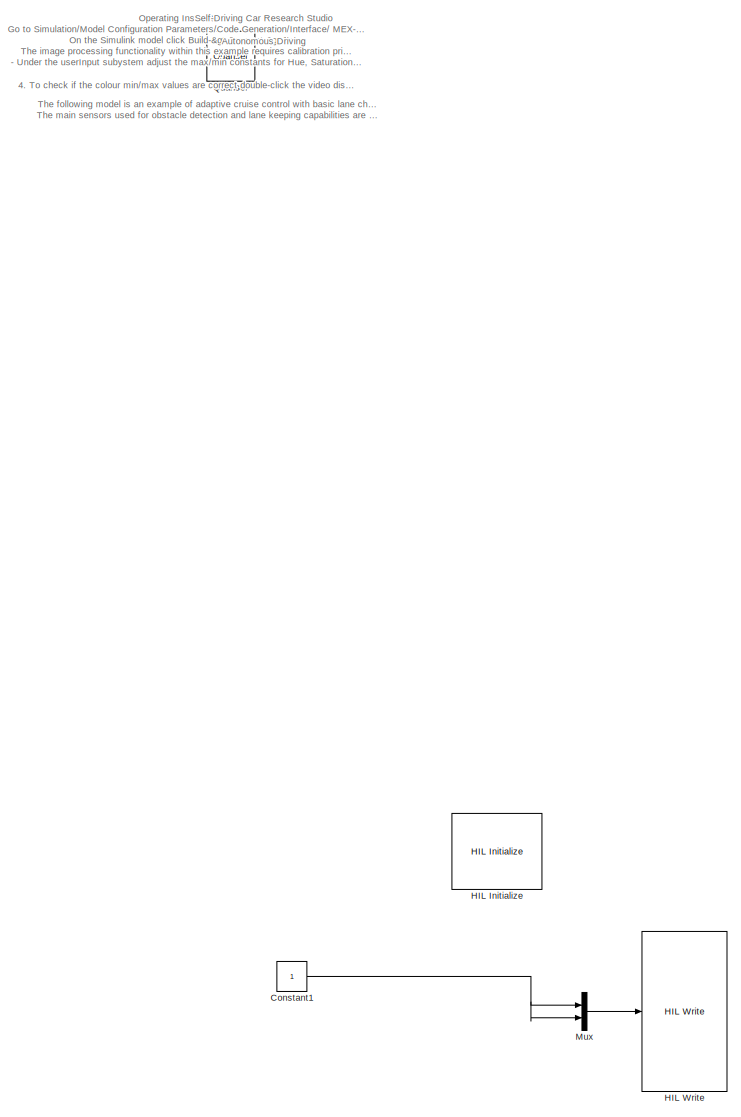
[diagram: root canvas - part 1/2, left side, full height]
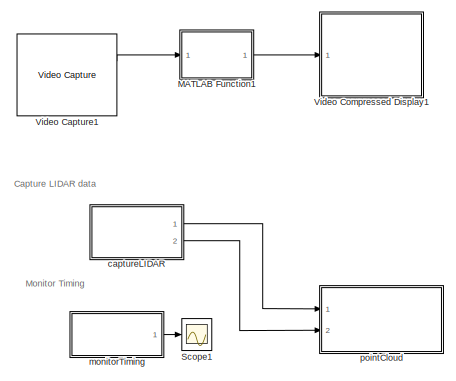
[diagram: root canvas - part 2/2, middle right region]
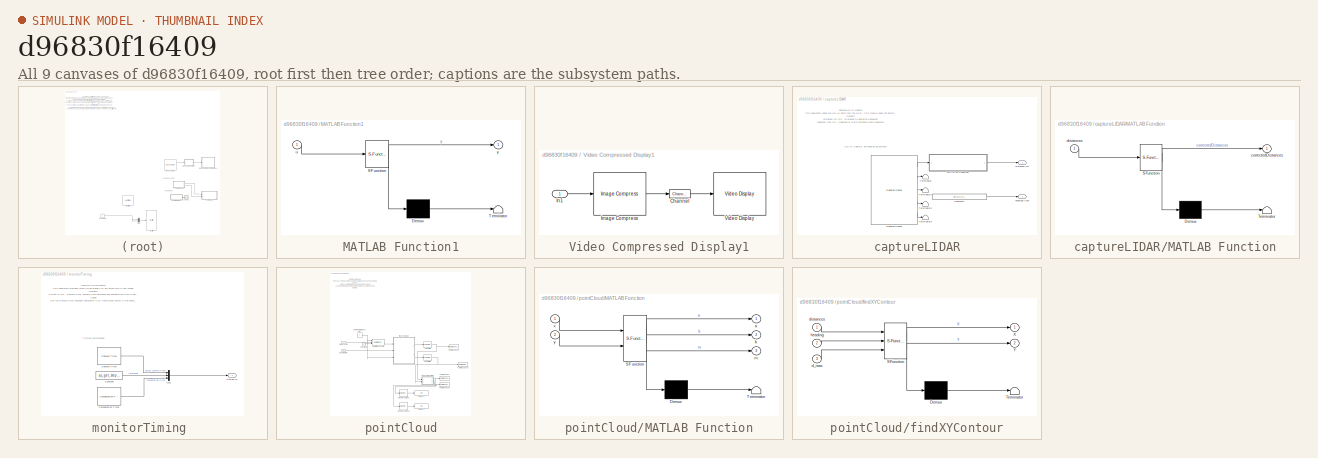
[diagram: thumbnail index - all 9 canvases of the model, root first then tree order]
MODEL slx_d96830f16409
KIND model
CONFIG AbsTol = auto
CONFIG EnableMultiTasking = on
CONFIG FixedStep = 1/120
CONFIG MaxStep = auto
CONFIG MinStep = auto
CONFIG RelTol = 1e-3
CONFIG SampleTimeConstraint = Unconstrained
CONFIG Solver = ode2
CONFIG SolverName = ode2
CONFIG StartTime = 0.0
CONFIG StopTime = inf
WORKSPACE source: MAT-file member
WORKSPACE MCOS: class17 (value not decoded)
BLOCK [Constant] Constant1
BLOCK [Reference] HIL Initialize  REF=quarc_library/Data Acquisition/Generic/Configuration/HIL Initialize
  AttributesFormatString = %<object_name> (%<board_type>-%<board_number>)
  Ports = []
  SourceBlock = quarc_library/Data Acquisition/Generic/Configuration/HIL Initialize
  SourceProductName = QUARC Targets
  SourceType = HIL Initialize
  UserDataPersistent = on
BLOCK [Reference] HIL Write  REF=quarc_library/Data Acquisition/Generic/Immediate I//O/HIL Write
  AttributesFormatString = (%<object_name>)
  Ports = [1]
  SourceBlock = quarc_library/Data Acquisition/Generic/Immediate I//O/HIL Write
  SourceProductName = QUARC Targets
  SourceType = HIL Write
  UserDataPersistent = on
BLOCK [SubSystem] MATLAB Function1
  ErrorFcn = Stateflow.Translate.translate
  PermitHierarchicalResolution = ExplicitOnly
  Ports = [1, 1]
  RequestExecContextInheritance = off
  SFBlockType = MATLAB Function
  TreatAsAtomicUnit = on
BLOCK [Demux] MATLAB Function1/ Demux 
  Outputs = 1
  Ports = [1, 1]
BLOCK [S-Function] MATLAB Function1/ SFunction 
  EnableBusSupport = on
  FunctionName = sf_sfun
  PortCounts = [1 2]
  Ports = [1, 2]
  SFcnIsStateOwnerBlock = off
  SFunctionDeploymentMode = off
  Tag = Stateflow S-Function calibration 3
BLOCK [Terminator] MATLAB Function1/ Terminator 
BLOCK [Inport] MATLAB Function1/u
  IconDisplay = Port number
BLOCK [Outport] MATLAB Function1/y
  IconDisplay = Port number
BLOCK [Mux] Mux
  DisplayOption = bar
  Inputs = 2
  Ports = [2, 1]
BLOCK [Reference] Quanser  REF=quarc_library/Logos/Quanser
  Ports = []
  SourceBlock = quarc_library/Logos/Quanser
  SourceProductName = QUARC Targets
  SourceType = Powered by Quanser
BLOCK [Scope] Scope1
  Floating = off
  NumInputPorts = 1
  Ports = [1]
  ScopeSpecificationString = Simulink.scopes.TimeScopeBlockCfg('CurrentConfiguration', extmgr.ConfigurationSet(extmgr.Configuration('Core','General UI',true),extmgr.Configuration('Core','Source UI',true),extmgr.Configuration('Sources','WiredSimulink',true),extmgr.Configuration('Visuals','Time Domain',true,'SerializedDisplays',{struct('MinYLimReal','-0.00448','MaxYLimReal','0.04029','YLabelReal','','MinYLimMag','0.00000','MaxY...<+1403ch>
BLOCK [Reference] Video Capture1  REF=quarc_library/Multimedia/Video Capture
  Ports = [0, 2]
  SourceBlock = quarc_library/Multimedia/Video Capture
  SourceProductName = QUARC Targets
  SourceType = Video Capture
BLOCK [SubSystem] Video Compressed Display1
  CopyFcn = set_param(gcbh, 'UserData', gcb);\nset_param(gcbh, 'LinkStatus', 'none');
  LoadFcn = set_param(gcbh, 'UserData', gcb);
  NameChangeFcn = video_display_show([get_param(gcbh, 'UserData'), '/Video Display'], 'rename', [gcb, '/Video Display']);\nvideo_display_show([gcb, '/Video Display'], 'add', gcb);\nset_param(gcbh, 'UserData', gcb);
  OpenFcn = video_display_show([gcb, '/Video Display'], 'show', gcb);
  Ports = [1]
  PreDeleteFcn = video_display_show([gcb, '/Video Display'], 'delete');
  RequestExecContextInheritance = off
  StartFcn = video_display_show([gcb, '/Video Display'], 'add', gcb);
  UndoDeleteFcn = set_param(gcbh, 'UserData', gcb);
BLOCK [Reference] Video Compressed Display1/Channel  REF=quarc_library/Signal Routing/Channel
  Ports = [1, 1]
  SourceBlock = quarc_library/Signal Routing/Channel
  SourceProductName = QUARC Targets
  SourceType = Channel
BLOCK [Reference] Video Compressed Display1/Image Compress  REF=quarc_library/Image Processing/Generic/Image Compress
  AttributesFormatString = (%<algorithm>)
  Ports = [1, 1]
  SourceBlock = quarc_library/Image Processing/Generic/Image Compress
  SourceProductName = QUARC Targets
  SourceType = Image Compress
BLOCK [Inport] Video Compressed Display1/In1
  IconDisplay = Port number
BLOCK [Reference] Video Compressed Display1/Video Display  REF=quarc_library/Multimedia/Video Display
  Ports = [1]
  SourceBlock = quarc_library/Multimedia/Video Display
  SourceProductName = QUARC Targets
  SourceType = Video Display
  Tag = calibration/Video Compressed\nDisplay1/Video Display
  UserDataPersistent = on
BLOCK [SubSystem] captureLIDAR
  Ports = [0, 2]
  RequestExecContextInheritance = off
BLOCK [Constant] captureLIDAR/Constant1
  Value = pi*(0:0.5:359.95)/180
BLOCK [SubSystem] captureLIDAR/MATLAB Function
  ErrorFcn = Stateflow.Translate.translate
  PermitHierarchicalResolution = ExplicitOnly
  Ports = [1, 1]
  RequestExecContextInheritance = off
  SFBlockType = MATLAB Function
  TreatAsAtomicUnit = on
BLOCK [Demux] captureLIDAR/MATLAB Function/ Demux 
  Outputs = 1
  Ports = [1, 1]
BLOCK [S-Function] captureLIDAR/MATLAB Function/ SFunction 
  EnableBusSupport = on
  FunctionName = sf_sfun
  PortCounts = [1 2]
  Ports = [1, 2]
  SFcnIsStateOwnerBlock = off
  SFunctionDeploymentMode = off
  Tag = Stateflow S-Function calibration 10
BLOCK [Terminator] captureLIDAR/MATLAB Function/ Terminator 
BLOCK [Outport] captureLIDAR/MATLAB Function/correctedDistances
  IconDisplay = Port number
BLOCK [Inport] captureLIDAR/MATLAB Function/distances
  IconDisplay = Port number
BLOCK [Reference] captureLIDAR/Ranging Sensor  REF=quarc_library/Devices/Third-Party/Distance Sensors/Ranging Sensor
  Ports = [0, 5]
  SourceBlock = quarc_library/Devices/Third-Party/Distance Sensors/Ranging Sensor
  SourceProductName = QUARC Targets
  SourceType = Ranging Sensor
BLOCK [Terminator] captureLIDAR/Terminator
BLOCK [Terminator] captureLIDAR/Terminator1
BLOCK [Terminator] captureLIDAR/Terminator2
BLOCK [Terminator] captureLIDAR/Terminator3
BLOCK [Outport] captureLIDAR/distances (m)
  IconDisplay = Port number
BLOCK [Outport] captureLIDAR/headings (rad)
  IconDisplay = Port number
  Port = 2
BLOCK [SubSystem] monitorTiming 
  Ports = [0, 1]
  RequestExecContextInheritance = off
BLOCK [Reference] monitorTiming /Computation Time  REF=quarc_library/Sources/Time/Computation Time
  Ports = [0, 1]
  SourceBlock = quarc_library/Sources/Time/Computation Time
  SourceProductName = QUARC Targets
  SourceType = Computation Time
BLOCK [Constant] monitorTiming /Constant
  Value = qc_get_step_size
BLOCK [Mux] monitorTiming /Mux
  DisplayOption = bar
  Inputs = 3
  Ports = [3, 1]
BLOCK [Reference] monitorTiming /Sample Time  REF=quarc_library/Sources/Time/Sample Time
  Ports = [0, 1]
  Priority = -99
  SourceBlock = quarc_library/Sources/Time/Sample Time
  SourceProductName = QUARC Targets
  SourceType = Sample Time
BLOCK [Outport] monitorTiming /timing (s)
  IconDisplay = Port number
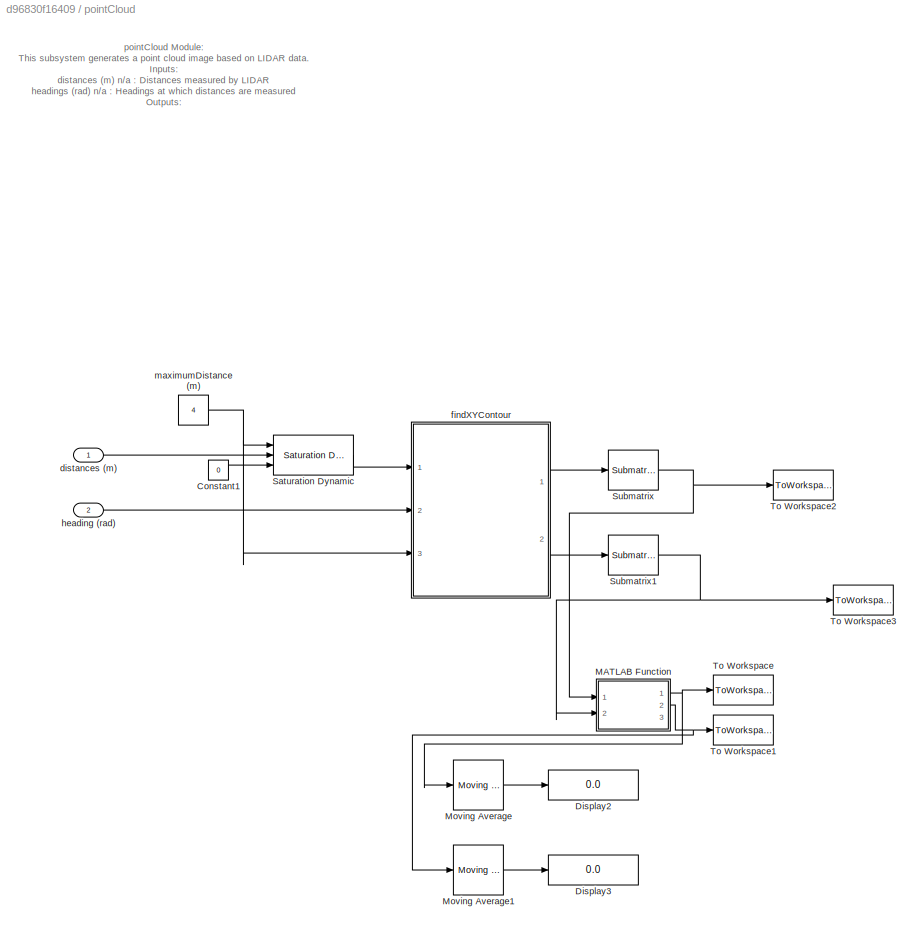
BLOCK [SubSystem] pointCloud
  Ports = [2]
  RequestExecContextInheritance = off
BLOCK [Constant] pointCloud/Constant1
  Value = 0
BLOCK [Display] pointCloud/Display2
  Decimation = 1
  Ports = [1]
BLOCK [Display] pointCloud/Display3
  Decimation = 1
  Ports = [1]
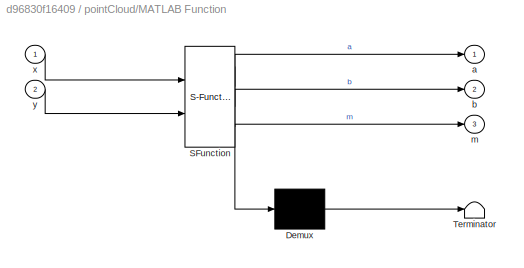
BLOCK [SubSystem] pointCloud/MATLAB Function
  ErrorFcn = Stateflow.Translate.translate
  PermitHierarchicalResolution = ExplicitOnly
  Ports = [2, 3]
  RequestExecContextInheritance = off
  SFBlockType = MATLAB Function
  TreatAsAtomicUnit = on
BLOCK [Demux] pointCloud/MATLAB Function/ Demux 
  Outputs = 1
  Ports = [1, 1]
BLOCK [S-Function] pointCloud/MATLAB Function/ SFunction 
  EnableBusSupport = on
  FunctionName = sf_sfun
  PortCounts = [2 4]
  Ports = [2, 4]
  SFcnIsStateOwnerBlock = off
  SFunctionDeploymentMode = off
  Tag = Stateflow S-Function calibration 1
BLOCK [Terminator] pointCloud/MATLAB Function/ Terminator 
BLOCK [Outport] pointCloud/MATLAB Function/a
  IconDisplay = Port number
BLOCK [Outport] pointCloud/MATLAB Function/b
  IconDisplay = Port number
  Port = 2
BLOCK [Outport] pointCloud/MATLAB Function/m
  IconDisplay = Port number
  Port = 3
BLOCK [Inport] pointCloud/MATLAB Function/x
  IconDisplay = Port number
BLOCK [Inport] pointCloud/MATLAB Function/y
  IconDisplay = Port number
  Port = 2
BLOCK [Reference] pointCloud/Moving Average  REF=dspstat3/Moving
Average
  Ports = [1, 1]
  SourceBlock = dspstat3/Moving\nAverage
  SourceProductBaseCode = DS
  SourceProductName = DSP System Toolbox
  SourceType = dsp.simulink.MovingAverage
BLOCK [Reference] pointCloud/Moving Average1  REF=dspstat3/Moving
Average
  Ports = [1, 1]
  SourceBlock = dspstat3/Moving\nAverage
  SourceProductBaseCode = DS
  SourceProductName = DSP System Toolbox
  SourceType = dsp.simulink.MovingAverage
BLOCK [Reference] pointCloud/Saturation Dynamic  REF=simulink/Discontinuities/Saturation
Dynamic
  Ports = [3, 1]
  SourceBlock = simulink/Discontinuities/Saturation\nDynamic
  SourceProductBaseCode = SL
  SourceProductName = Simulink
  SourceType = Saturation Dynamic
BLOCK [Reference] pointCloud/Submatrix  REF=dspmtrx3/Submatrix
  Ports = [1, 1]
  SourceBlock = dspmtrx3/Submatrix
  SourceProductBaseCode = DS
  SourceProductName = DSP System Toolbox
  SourceType = Submatrix
BLOCK [Reference] pointCloud/Submatrix1  REF=dspmtrx3/Submatrix
  Ports = [1, 1]
  SourceBlock = dspmtrx3/Submatrix
  SourceProductBaseCode = DS
  SourceProductName = DSP System Toolbox
  SourceType = Submatrix
BLOCK [ToWorkspace] pointCloud/To Workspace
  FixptAsFi = on
  MaxDataPoints = inf
  Ports = [1]
  SampleTime = -1
  Save2DSignal = 2-D array (concatenate along first dimension)
  VariableName = a
BLOCK [ToWorkspace] pointCloud/To Workspace1
  FixptAsFi = on
  MaxDataPoints = inf
  Ports = [1]
  SampleTime = -1
  Save2DSignal = 2-D array (concatenate along first dimension)
  VariableName = b
BLOCK [ToWorkspace] pointCloud/To Workspace2
  FixptAsFi = on
  MaxDataPoints = inf
  Ports = [1]
  SampleTime = -1
  Save2DSignal = 2-D array (concatenate along first dimension)
  VariableName = x
BLOCK [ToWorkspace] pointCloud/To Workspace3
  FixptAsFi = on
  MaxDataPoints = inf
  Ports = [1]
  SampleTime = -1
  Save2DSignal = 2-D array (concatenate along first dimension)
  VariableName = y
BLOCK [Inport] pointCloud/distances (m)
  IconDisplay = Port number
BLOCK [SubSystem] pointCloud/findXYContour
  ErrorFcn = Stateflow.Translate.translate
  PermitHierarchicalResolution = ExplicitOnly
  Ports = [3, 2]
  RequestExecContextInheritance = off
  SFBlockType = MATLAB Function
  TreatAsAtomicUnit = on
BLOCK [Demux] pointCloud/findXYContour/ Demux 
  Outputs = 1
  Ports = [1, 1]
BLOCK [S-Function] pointCloud/findXYContour/ SFunction 
  EnableBusSupport = on
  FunctionName = sf_sfun
  PortCounts = [3 3]
  Ports = [3, 3]
  SFcnIsStateOwnerBlock = off
  SFunctionDeploymentMode = off
  Tag = Stateflow S-Function calibration 5
BLOCK [Terminator] pointCloud/findXYContour/ Terminator 
BLOCK [Outport] pointCloud/findXYContour/X
  IconDisplay = Port number
BLOCK [Outport] pointCloud/findXYContour/Y
  IconDisplay = Port number
  Port = 2
BLOCK [Inport] pointCloud/findXYContour/d_max
  IconDisplay = Port number
  Port = 3
BLOCK [Inport] pointCloud/findXYContour/distances
  IconDisplay = Port number
BLOCK [Inport] pointCloud/findXYContour/heading
  IconDisplay = Port number
  Port = 2
BLOCK [Inport] pointCloud/heading (rad)
  IconDisplay = Port number
  Port = 2
BLOCK [Constant] pointCloud/maximumDistance (m)
  Value = 4
ANNOTATION (root): Operating Instructions: Go to Simulation/Model Configuration Parameters/Code Generation/Interface/ MEX-file Arguments and ensure the IP address (by default 192.168.2.xxx) matches the same sequence of numbers as the LCD on the QCar. If it does not please modify the IP address accordingly. On the Simulink model click Build->Connect->Run . The image processing functionality within this example requir...<+1665ch>
ANNOTATION (root): The following model is an example of adaptive cruise control with basic lane changing capabilities. The main sensors used for obstacle detection and lane keeping capabilities are the CSI cameras and Intel RealSense D435.
ANNOTATION (root): Self-Driving Car Research Studio Autonomous Driving
ANNOTATION (root): Capture LIDAR data
ANNOTATION (root): Monitor Timing
ANNOTATION captureLIDAR: captureLIDAR Module: This subsystem reads the LIDAR data from the QCar. This module reads 720 points per revolution at 30 Hz (30 scans per s). Outputs: distances (m) n/a : Distances to obstacles measured headings (rad) n/a : Headings at which distances were measured
ANNOTATION captureLIDAR: LIDAR Capture, and heading adjustment
ANNOTATION monitorTiming : monitorTiming Module: This subsystem provides three timing signals for any given rate in your model. Outputs: timing (s) n/a : Sample time, sample time reference and computation time in seconds. Usage: Set the 'Sample time (seconds)' parameter in all three blocks below to the same number. This will provide the actual sample time at each time step, the reference sample time that is being targeted a...<+103ch>
ANNOTATION monitorTiming : Timing Performance
ANNOTATION pointCloud: pointCloud Module: This subsystem generates a point cloud image based on LIDAR data. Inputs: distances (m) n/a : Distances measured by LIDAR headings (rad) n/a : Headings at which distances are measured Outputs: map (px) {0, 1} : 400 x 400 point cloud image Usage: The data is dynamically saturated based on the maximumDistance (m) constant. To prevent a circle with radius being the maximumDistance ...<+288ch>
NET Constant1:1 -> Mux:1, Mux:2
LINE MATLAB Function1:1 -> Video Compressed Display1:1
LINE Mux:1 -> HIL Write:1
LINE Video Capture1:1 -> MATLAB Function1:1
LINE captureLIDAR/Constant1:1 -> captureLIDAR/headings (rad):1
LINE captureLIDAR/MATLAB Function:1 -> captureLIDAR/distances (m):1
LINE captureLIDAR/Ranging Sensor:1 -> captureLIDAR/MATLAB Function:1
LINE captureLIDAR/Ranging Sensor:2 -> captureLIDAR/Terminator:1
LINE captureLIDAR/Ranging Sensor:3 -> captureLIDAR/Terminator1:1
LINE captureLIDAR/Ranging Sensor:4 -> captureLIDAR/Terminator2:1
LINE captureLIDAR/Ranging Sensor:5 -> captureLIDAR/Terminator3:1
LINE captureLIDAR:1 -> pointCloud:1
LINE captureLIDAR:2 -> pointCloud:2
LINE monitorTiming /Computation Time:1 -> monitorTiming /Mux:3
LINE monitorTiming /Constant:1 -> monitorTiming /Mux:2
LINE monitorTiming /Mux:1 -> monitorTiming /timing (s):1
LINE monitorTiming /Sample Time:1 -> monitorTiming /Mux:1
LINE monitorTiming :1 -> Scope1:1
LINE pointCloud/Constant1:1 -> pointCloud/Saturation Dynamic:3
NET pointCloud/MATLAB Function:1 -> pointCloud/Moving Average:1, pointCloud/To Workspace:1
NET pointCloud/MATLAB Function:2 -> pointCloud/Moving Average1:1, pointCloud/To Workspace1:1
LINE pointCloud/Moving Average1:1 -> pointCloud/Display3:1
LINE pointCloud/Moving Average:1 -> pointCloud/Display2:1
LINE pointCloud/Saturation Dynamic:1 -> pointCloud/findXYContour:1
NET pointCloud/Submatrix1:1 -> pointCloud/MATLAB Function:2, pointCloud/To Workspace3:1
NET pointCloud/Submatrix:1 -> pointCloud/MATLAB Function:1, pointCloud/To Workspace2:1
LINE pointCloud/distances (m):1 -> pointCloud/Saturation Dynamic:2
LINE pointCloud/findXYContour:1 -> pointCloud/Submatrix:1
LINE pointCloud/findXYContour:2 -> pointCloud/Submatrix1:1
LINE pointCloud/heading (rad):1 -> pointCloud/findXYContour:2
NET pointCloud/maximumDistance (m):1 -> pointCloud/Saturation Dynamic:1, pointCloud/findXYContour:3
note: NET lines group one-source signal fan-out (src -> all destinations, sorted); 1:1 wires keep LINE
CHART pointCloud/MATLAB Function states=1 transitions=1
  STATE_LABEL 'eML_blk_kernel()'
  STATE_LABEL 'SCRIPT:\nfunction [a,b,m] = fcn(x,y)\n\nm = polyfit(x,y,1);\na = m(1);\nb = m(2);\n\n\n'
CHART MATLAB Function1 states=1 transitions=1
  STATE_LABEL 'eML_blk_kernel()'
  STATE_LABEL 'SCRIPT:\nfunction y = fcn(u)\n\ny = u(1:340,:,:);\n'
CHART pointCloud/findXYContour states=1 transitions=1
  STATE_LABEL 'eML_blk_kernel()'
  STATE_LABEL 'SCRIPT:\nfunction [X, Y] = findXYContour(distances, heading, d_max)\n\n% find indices where distances corresponds to the d_max (bordering circle)\nidx = distances > d_max;\n\n% drop the bordering circle\ndistances(idx)=0;\nheading(idx)=0;\n\n% find X, Y pairs from distance, heading\nX = distances.*cos(heading);\nY = distances.*sin(heading);\n'
CHART captureLIDAR/MATLAB Function states=1 transitions=1
  STATE_LABEL 'eML_blk_kernel()'
  STATE_LABEL 'SCRIPT:\nfunction correctedDistances = bodyFrameAdjustmentOnCapture(distances)\nnum = 720;\ncorrectedDistances = [distances(num/4:-1:1,1); distances(num:-1:num/4 + 1,1)];\n'
